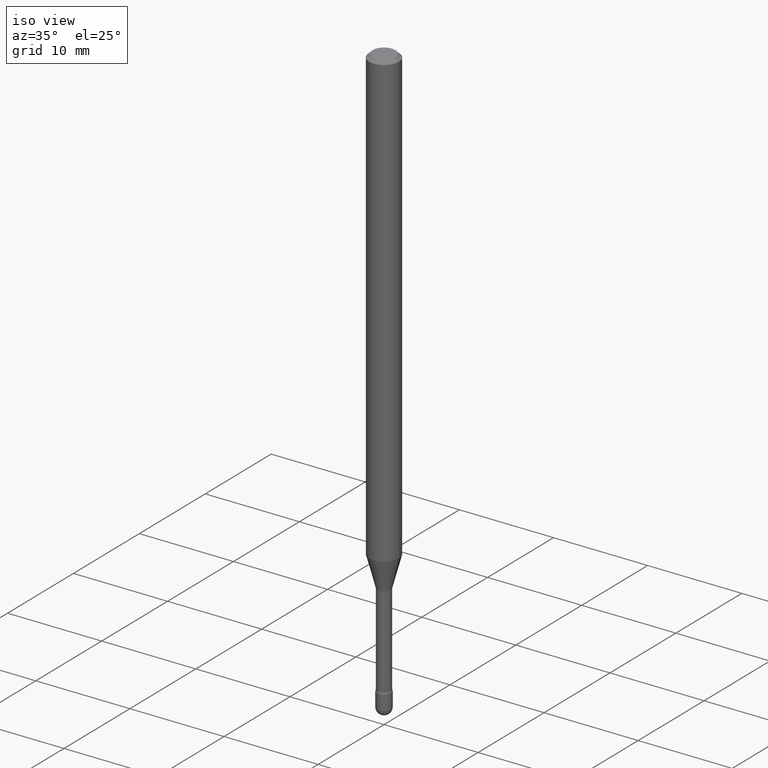
[diagram: clean part render]
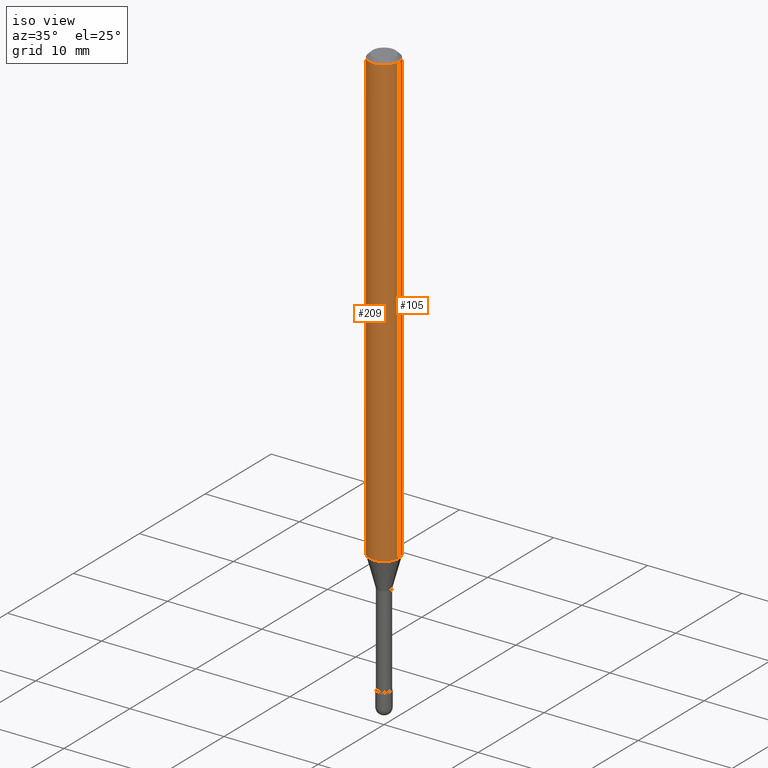
[diagram: same view with one multi-face feature highlighted, each face labeled with its STEP entity id]
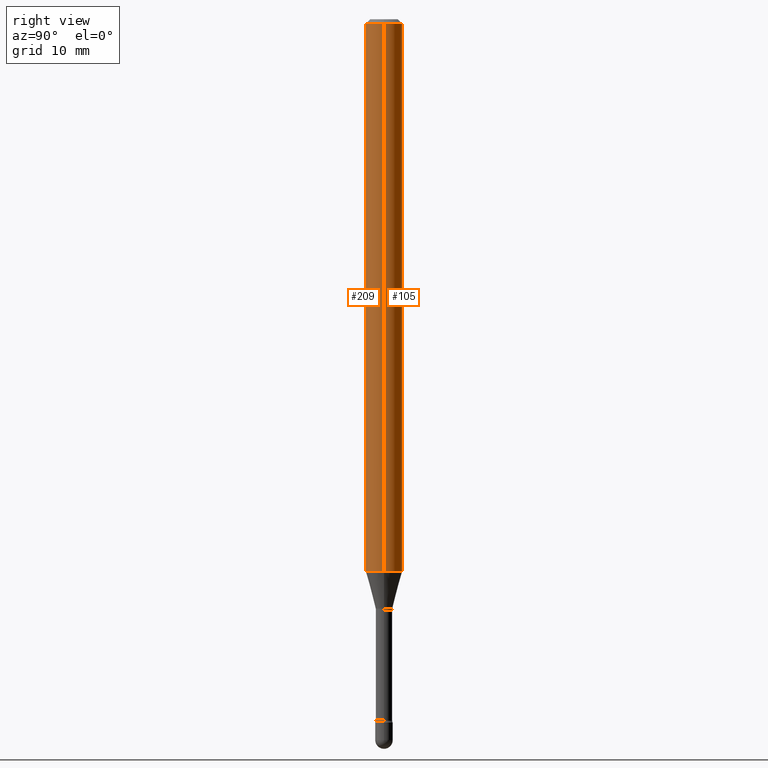
[diagram: same view with one multi-face feature highlighted, each face labeled with its STEP entity id]
A machine part, iso view. The highlighted faces form ONE feature: a constant-radius fillet chain: 2 tangent blend faces with common blend radius 1.5875 mm. The faces share edges in the B-rep.
A second angle (right view) of the same feature is appended — it is thin or edge-on in the first view.
Their STEP definitions:
[1] entity #105 (Cylinder):
#6 = EDGE_CURVE ( 'NONE', #163, #319, #530, .T. ) ;
#16 = LINE ( 'NONE', #495, #480 ) ;
#20 = DIRECTION ( 'NONE',  ( -2.445468806185136597E-29, 3.491481338843145583E-15, 1.000000000000000000 ) ) ;
#27 = ORIENTED_EDGE ( 'NONE', *, *, #414, .T. ) ;
#62 = EDGE_CURVE ( 'NONE', #187, #319, #265, .T. ) ;
#73 = DIRECTION ( 'NONE',  ( 1.000000000000000000, -6.982962677686262766E-15, 0.000000000000000000 ) ) ;
#100 = CARTESIAN_POINT ( 'NONE',  ( -0.06250000000000000000, -6.161760863379818545E-15, -1.891990657300387735 ) ) ;
#105 = ADVANCED_FACE ( 'NONE', ( #131 ), #188, .T. ) ;
#107 = ORIENTED_EDGE ( 'NONE', *, *, #62, .T. ) ;
#124 = CARTESIAN_POINT ( 'NONE',  ( -0.06250000000000000000, -2.885021936806201701E-15, -0.01500000000000008271 ) ) ;
#128 = EDGE_CURVE ( 'NONE', #285, #163, #16, .T. ) ;
#131 = FACE_OUTER_BOUND ( 'NONE', #550, .T. ) ;
#147 = DIRECTION ( 'NONE',  ( -2.445468806185136877E-29, 3.491481338843145188E-15, 1.000000000000000000 ) ) ;
#163 = VERTEX_POINT ( 'NONE', #189 ) ;
#187 = VERTEX_POINT ( 'NONE', #100 ) ;
#188 = CYLINDRICAL_SURFACE ( 'NONE', #540, 0.06250000000000000000 ) ;
#189 = CARTESIAN_POINT ( 'NONE',  ( 0.06250000000000000000, -4.888073874380391431E-16, -0.01500000000000008271 ) ) ;
#193 = AXIS2_PLACEMENT_3D ( 'NONE', #337, #20, #73 ) ;
#237 = AXIS2_PLACEMENT_3D ( 'NONE', #382, #372, #462 ) ;
#265 = LINE ( 'NONE', #433, #553 ) ;
#285 = VERTEX_POINT ( 'NONE', #469 ) ;
#319 = VERTEX_POINT ( 'NONE', #124 ) ;
#337 = CARTESIAN_POINT ( 'NONE',  ( 4.626804134021810913E-29, -6.605850073229881161E-15, -1.891990657300387735 ) ) ;
#363 = CARTESIAN_POINT ( 'NONE',  ( -1.169113584055446105E-44, 1.669184350826100908E-30, 4.780733988912460139E-16 ) ) ;
#372 = DIRECTION ( 'NONE',  ( -2.445468806185136597E-29, 3.491481338843145583E-15, 1.000000000000000000 ) ) ;
#374 = ORIENTED_EDGE ( 'NONE', *, *, #6, .F. ) ;
#382 = CARTESIAN_POINT ( 'NONE',  ( 3.668203209277725232E-31, -5.237222008264747365E-17, -0.01500000000000008271 ) ) ;
#394 = ORIENTED_EDGE ( 'NONE', *, *, #128, .F. ) ;
#402 = DIRECTION ( 'NONE',  ( -2.445468806185136597E-29, 3.491481338843145583E-15, 1.000000000000000000 ) ) ;
#414 = EDGE_CURVE ( 'NONE', #285, #187, #563, .T. ) ;
#428 = DIRECTION ( 'NONE',  ( -2.445468806185136877E-29, 3.491481338843145188E-15, 1.000000000000000000 ) ) ;
#433 = CARTESIAN_POINT ( 'NONE',  ( -0.06250000000000000000, 4.440892098500642925E-16, 4.780733988912429571E-16 ) ) ;
#462 = DIRECTION ( 'NONE',  ( 1.000000000000000000, -6.982962677686266711E-15, 0.000000000000000000 ) ) ;
#469 = CARTESIAN_POINT ( 'NONE',  ( 0.06250000000000000000, -7.042285240585273619E-15, -1.891990657300387735 ) ) ;
#480 = VECTOR ( 'NONE', #147, 39.37007874015748143 ) ;
#493 = DIRECTION ( 'NONE',  ( 1.000000000000000000, -6.982962677686266711E-15, 4.852736867747366207E-29 ) ) ;
#495 = CARTESIAN_POINT ( 'NONE',  ( 0.06250000000000000000, -4.364351673553899931E-16, 4.780733988912490708E-16 ) ) ;
#530 = CIRCLE ( 'NONE', #237, 0.06250000000000000000 ) ;
#540 = AXIS2_PLACEMENT_3D ( 'NONE', #363, #402, #493 ) ;
#550 = EDGE_LOOP ( 'NONE', ( #27, #107, #374, #394 ) ) ;
#553 = VECTOR ( 'NONE', #428, 39.37007874015748143 ) ;
#563 = CIRCLE ( 'NONE', #193, 0.06250000000000000000 ) ;
[2] entity #209 (Cylinder):
#16 = LINE ( 'NONE', #495, #480 ) ;
#31 = CIRCLE ( 'NONE', #353, 0.06250000000000000000 ) ;
#53 = EDGE_LOOP ( 'NONE', ( #441, #554, #535, #485 ) ) ;
#62 = EDGE_CURVE ( 'NONE', #187, #319, #265, .T. ) ;
#96 = CIRCLE ( 'NONE', #167, 0.06250000000000000000 ) ;
#100 = CARTESIAN_POINT ( 'NONE',  ( -0.06250000000000000000, -6.161760863379818545E-15, -1.891990657300387735 ) ) ;
#114 = CARTESIAN_POINT ( 'NONE',  ( 3.668203209277725232E-31, -5.237222008264747365E-17, -0.01500000000000008271 ) ) ;
#119 = EDGE_CURVE ( 'NONE', #187, #285, #96, .T. ) ;
#121 = CARTESIAN_POINT ( 'NONE',  ( -1.169113584055446105E-44, 1.669184350826100908E-30, 4.780733988912460139E-16 ) ) ;
#124 = CARTESIAN_POINT ( 'NONE',  ( -0.06250000000000000000, -2.885021936806201701E-15, -0.01500000000000008271 ) ) ;
#128 = EDGE_CURVE ( 'NONE', #285, #163, #16, .T. ) ;
#147 = DIRECTION ( 'NONE',  ( -2.445468806185136877E-29, 3.491481338843145188E-15, 1.000000000000000000 ) ) ;
#163 = VERTEX_POINT ( 'NONE', #189 ) ;
#167 = AXIS2_PLACEMENT_3D ( 'NONE', #277, #444, #510 ) ;
#187 = VERTEX_POINT ( 'NONE', #100 ) ;
#189 = CARTESIAN_POINT ( 'NONE',  ( 0.06250000000000000000, -4.888073874380391431E-16, -0.01500000000000008271 ) ) ;
#204 = DIRECTION ( 'NONE',  ( 1.000000000000000000, -6.982962677686266711E-15, 4.852736867747366207E-29 ) ) ;
#209 = ADVANCED_FACE ( 'NONE', ( #307 ), #345, .T. ) ;
#217 = EDGE_CURVE ( 'NONE', #319, #163, #31, .T. ) ;
#257 = DIRECTION ( 'NONE',  ( -2.445468806185136597E-29, 3.491481338843145583E-15, 1.000000000000000000 ) ) ;
#265 = LINE ( 'NONE', #433, #553 ) ;
#273 = AXIS2_PLACEMENT_3D ( 'NONE', #121, #257, #204 ) ;
#277 = CARTESIAN_POINT ( 'NONE',  ( 4.626804134021810913E-29, -6.605850073229881161E-15, -1.891990657300387735 ) ) ;
#285 = VERTEX_POINT ( 'NONE', #469 ) ;
#307 = FACE_OUTER_BOUND ( 'NONE', #53, .T. ) ;
#319 = VERTEX_POINT ( 'NONE', #124 ) ;
#345 = CYLINDRICAL_SURFACE ( 'NONE', #273, 0.06250000000000000000 ) ;
#353 = AXIS2_PLACEMENT_3D ( 'NONE', #114, #383, #513 ) ;
#383 = DIRECTION ( 'NONE',  ( -2.445468806185136597E-29, 3.491481338843145583E-15, 1.000000000000000000 ) ) ;
#428 = DIRECTION ( 'NONE',  ( -2.445468806185136877E-29, 3.491481338843145188E-15, 1.000000000000000000 ) ) ;
#433 = CARTESIAN_POINT ( 'NONE',  ( -0.06250000000000000000, 4.440892098500642925E-16, 4.780733988912429571E-16 ) ) ;
#441 = ORIENTED_EDGE ( 'NONE', *, *, #62, .F. ) ;
#444 = DIRECTION ( 'NONE',  ( -2.445468806185136597E-29, 3.491481338843145583E-15, 1.000000000000000000 ) ) ;
#469 = CARTESIAN_POINT ( 'NONE',  ( 0.06250000000000000000, -7.042285240585273619E-15, -1.891990657300387735 ) ) ;
#480 = VECTOR ( 'NONE', #147, 39.37007874015748143 ) ;
#485 = ORIENTED_EDGE ( 'NONE', *, *, #217, .F. ) ;
#495 = CARTESIAN_POINT ( 'NONE',  ( 0.06250000000000000000, -4.364351673553899931E-16, 4.780733988912490708E-16 ) ) ;
#510 = DIRECTION ( 'NONE',  ( 1.000000000000000000, -6.982962677686262766E-15, 0.000000000000000000 ) ) ;
#513 = DIRECTION ( 'NONE',  ( 1.000000000000000000, -6.982962677686266711E-15, 0.000000000000000000 ) ) ;
#535 = ORIENTED_EDGE ( 'NONE', *, *, #128, .T. ) ;
#553 = VECTOR ( 'NONE', #428, 39.37007874015748143 ) ;
#554 = ORIENTED_EDGE ( 'NONE', *, *, #119, .T. ) ;